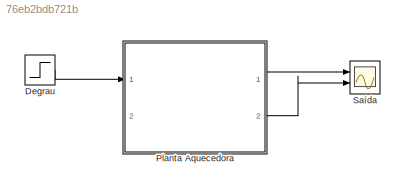
MODEL slx_76eb2bdb721b
KIND model
CONFIG AbsTol = auto
CONFIG FixedStep = auto
CONFIG MaxStep = auto
CONFIG MinStep = auto
CONFIG RelTol = 1e-3
CONFIG SampleTimeConstraint = Unconstrained
CONFIG Solver = VariableStepAuto
CONFIG SolverMode = Auto
CONFIG SolverName = VariableStepAuto
CONFIG StartTime = 0.0
CONFIG StopTime = 2000
BLOCK [Step] Degrau
  After = [60]
  Before = [40]
  SampleTime = 0
  Time = [1000]
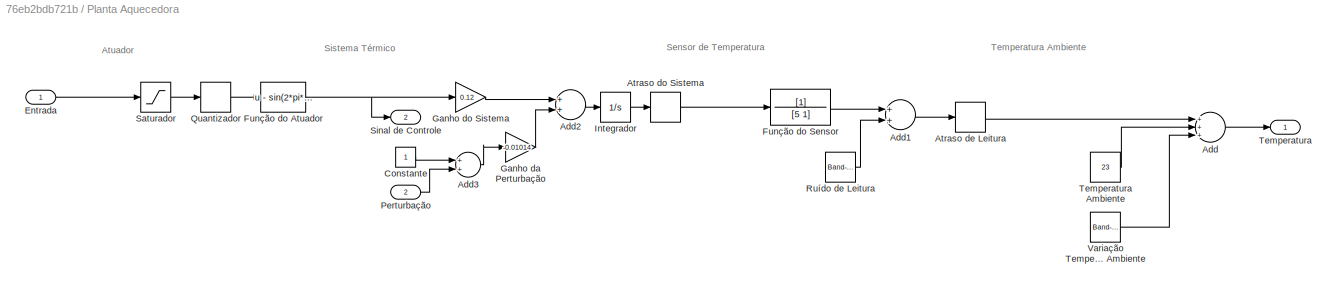
BLOCK [SubSystem] Planta Aquecedora
  Ports = [2, 2]
  RequestExecContextInheritance = off
  Variant = off
BLOCK [Sum] Planta Aquecedora/Add
  InputSameDT = off
  Inputs = +++
  OutDataTypeStr = Inherit: Inherit via internal rule
  Ports = [3, 1]
  SaturateOnIntegerOverflow = off
BLOCK [Sum] Planta Aquecedora/Add1
  InputSameDT = off
  OutDataTypeStr = Inherit: Inherit via internal rule
  Ports = [2, 1]
  SaturateOnIntegerOverflow = off
BLOCK [Sum] Planta Aquecedora/Add2
  InputSameDT = off
  OutDataTypeStr = Inherit: Inherit via internal rule
  Ports = [2, 1]
  SaturateOnIntegerOverflow = off
BLOCK [Sum] Planta Aquecedora/Add3
  InputSameDT = off
  OutDataTypeStr = Inherit: Inherit via internal rule
  Ports = [2, 1]
  SaturateOnIntegerOverflow = off
BLOCK [TransportDelay] Planta Aquecedora/Atraso de Leitura
  Ports = [1, 1]
BLOCK [TransportDelay] Planta Aquecedora/Atraso do Sistema
  DelayTime = 5
  Ports = [1, 1]
BLOCK [Constant] Planta Aquecedora/Constante
BLOCK [Inport] Planta Aquecedora/Entrada
  IconDisplay = Port number
BLOCK [Fcn] Planta Aquecedora/Função do Atuador
  Expr = u - sin(2*pi*u)/(2*pi)
BLOCK [TransferFcn] Planta Aquecedora/Função do Sensor
  Denominator = [5 1]
BLOCK [Gain] Planta Aquecedora/Ganho da Perturbação
  Gain = -0.01014
  OutDataTypeStr = Inherit: Inherit via internal rule
  ParamDataTypeStr = Inherit: Inherit via internal rule
  SaturateOnIntegerOverflow = off
BLOCK [Gain] Planta Aquecedora/Ganho do Sistema
  Gain = 0.12
  OutDataTypeStr = Inherit: Inherit via internal rule
  ParamDataTypeStr = Inherit: Inherit via internal rule
  SaturateOnIntegerOverflow = off
BLOCK [Integrator] Planta Aquecedora/Integrador
  LimitOutput = on
  LowerSaturationLimit = 0
  Ports = [1, 1]
  UpperSaturationLimit = 100 - 23
BLOCK [Inport] Planta Aquecedora/Perturbação
  IconDisplay = Port number
  Port = 2
BLOCK [Quantizer] Planta Aquecedora/Quantizador
  QuantizationInterval = 1/255
BLOCK [Reference] Planta Aquecedora/Ruído de Leitura  REF=simulink/Sources/Band-Limited
White Noise
  Ports = [0, 1]
  SourceBlock = simulink/Sources/Band-Limited\nWhite Noise
  SourceType = Band-Limited White Noise.
BLOCK [Saturate] Planta Aquecedora/Saturador
  InputPortMap = u0
  LowerLimit = 0
  Ports = [1, 1]
  UpperLimit = 1
BLOCK [Outport] Planta Aquecedora/Sinal de Controle
  IconDisplay = Port number
  Port = 2
BLOCK [Outport] Planta Aquecedora/Temperatura
  IconDisplay = Port number
BLOCK [Constant] Planta Aquecedora/Temperatura Ambiente
  Value = 23
BLOCK [Reference] Planta Aquecedora/Variação Temperatura Ambiente  REF=simulink/Sources/Band-Limited
White Noise
  Ports = [0, 1]
  SourceBlock = simulink/Sources/Band-Limited\nWhite Noise
  SourceType = Band-Limited White Noise.
BLOCK [Scope] Saída
  NumInputPorts = 2
  Ports = [2]
  ScopeSpecificationString = Simulink.scopes.TimeScopeBlockCfg('CurrentConfiguration', extmgr.ConfigurationSet(extmgr.Configuration('Core','General UI',true,'FigureColor',[1 1 1]),extmgr.Configuration('Core','Source UI',true),extmgr.Configuration('Sources','WiredSimulink',true,'DataLoggingVariableName','ScopeData1'),extmgr.Configuration('Visuals','Time Domain',true,'SerializedDisplays',{struct('MinYLimReal','18.09059','MaxYLi...<+2356ch>
ANNOTATION Planta Aquecedora: Atuador
ANNOTATION Planta Aquecedora: Sensor de Temperatura
ANNOTATION Planta Aquecedora: Sistema Térmico
ANNOTATION Planta Aquecedora: Temperatura Ambiente
LINE Degrau:1 -> Planta Aquecedora:1
LINE Planta Aquecedora/Add1:1 -> Planta Aquecedora/Atraso de Leitura:1
LINE Planta Aquecedora/Add2:1 -> Planta Aquecedora/Integrador:1
LINE Planta Aquecedora/Add3:1 -> Planta Aquecedora/Ganho da Perturbação:1
LINE Planta Aquecedora/Add:1 -> Planta Aquecedora/Temperatura:1
LINE Planta Aquecedora/Atraso de Leitura:1 -> Planta Aquecedora/Add:1
LINE Planta Aquecedora/Atraso do Sistema:1 -> Planta Aquecedora/Função do Sensor:1
LINE Planta Aquecedora/Constante:1 -> Planta Aquecedora/Add3:1
LINE Planta Aquecedora/Entrada:1 -> Planta Aquecedora/Saturador:1
NET Planta Aquecedora/Função do Atuador:1 -> Planta Aquecedora/Ganho do Sistema:1, Planta Aquecedora/Sinal de Controle:1
LINE Planta Aquecedora/Função do Sensor:1 -> Planta Aquecedora/Add1:1
LINE Planta Aquecedora/Ganho da Perturbação:1 -> Planta Aquecedora/Add2:2
LINE Planta Aquecedora/Ganho do Sistema:1 -> Planta Aquecedora/Add2:1
LINE Planta Aquecedora/Integrador:1 -> Planta Aquecedora/Atraso do Sistema:1
LINE Planta Aquecedora/Perturbação:1 -> Planta Aquecedora/Add3:2
LINE Planta Aquecedora/Quantizador:1 -> Planta Aquecedora/Função do Atuador:1
LINE Planta Aquecedora/Ruído de Leitura:1 -> Planta Aquecedora/Add1:2
LINE Planta Aquecedora/Saturador:1 -> Planta Aquecedora/Quantizador:1
LINE Planta Aquecedora/Temperatura Ambiente:1 -> Planta Aquecedora/Add:2
LINE Planta Aquecedora/Variação Temperatura Ambiente:1 -> Planta Aquecedora/Add:3
LINE Planta Aquecedora:1 -> Saída:1
LINE Planta Aquecedora:2 -> Saída:2
note: NET lines group one-source signal fan-out (src -> all destinations, sorted); 1:1 wires keep LINE
